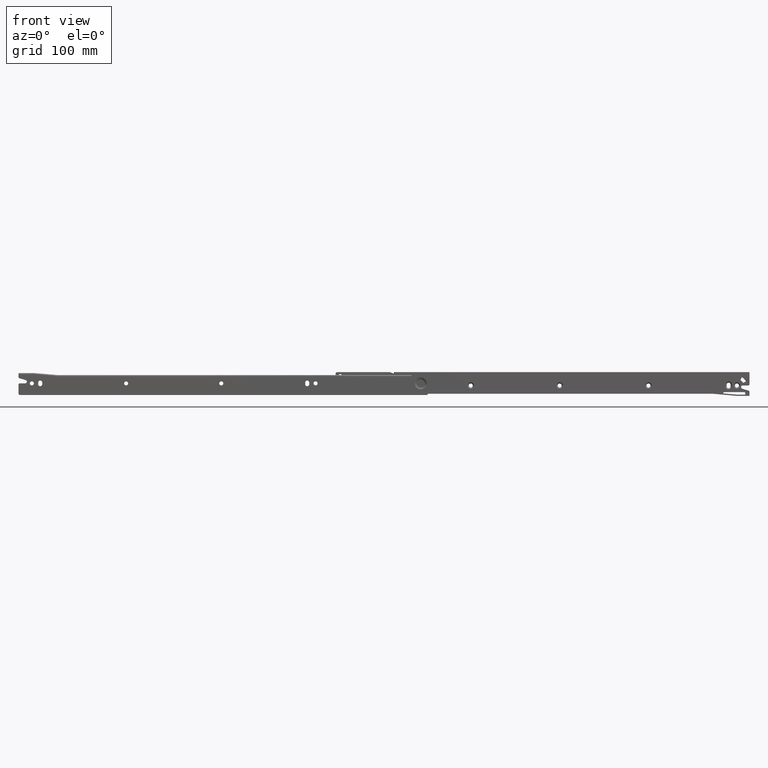
[diagram: clean part render]
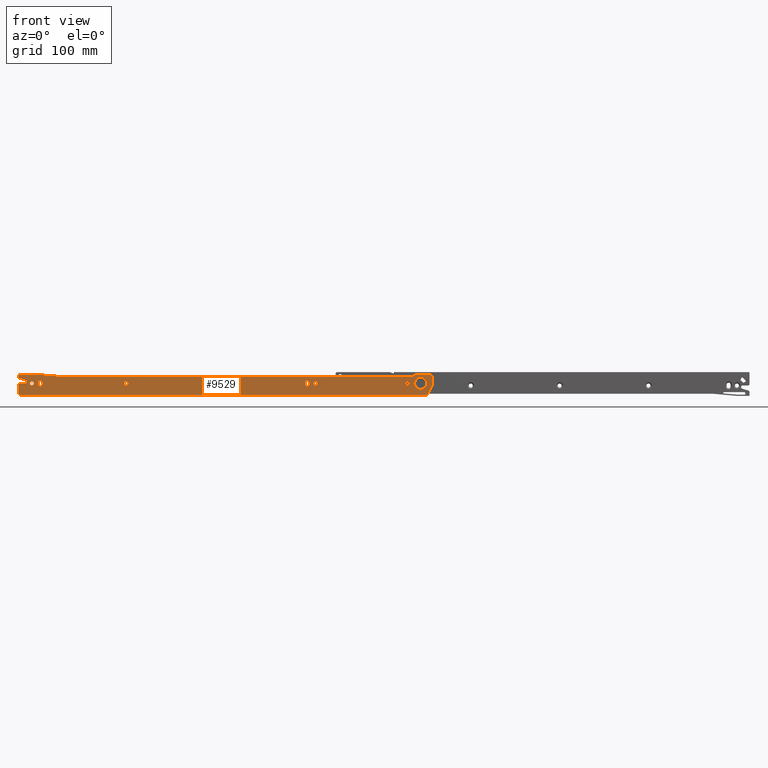
[diagram: same view with one face highlighted and labeled with its STEP entity id]
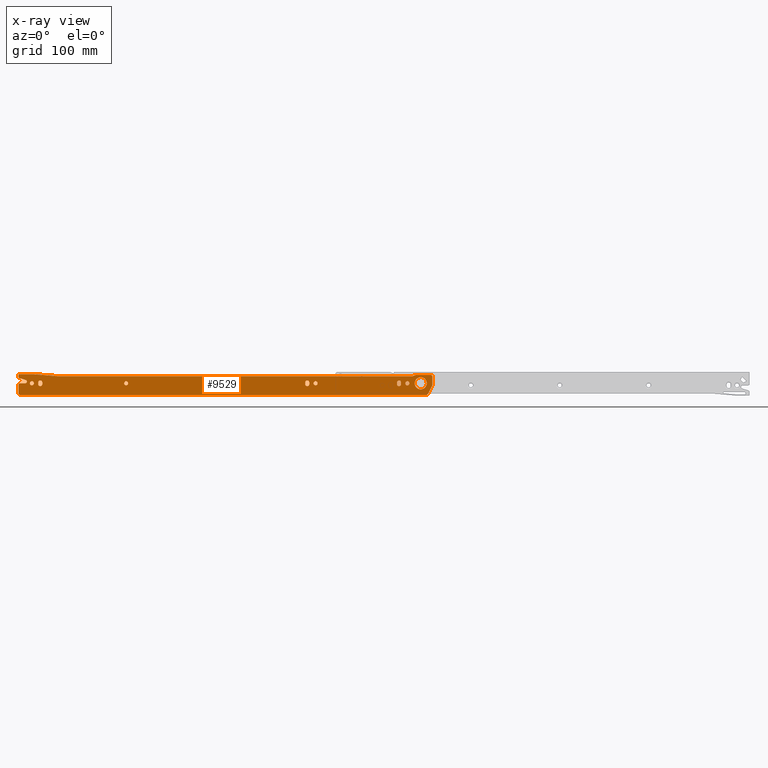
[diagram: x-ray of the same camera — body ghosted, the highlighted face saturated]
A machine part, front view. The second image highlights one B-rep face of the part: STEP entity #9529.
The next image is the same camera in x-ray: the body ghosted, the highlighted face saturated — about 0% of this face is hidden behind the body in this view.
In plain terms, the highlighted face is a freeform B-spline surface patch.
Its self-contained STEP definition (entity closure, byte-faithful):
#5490=CARTESIAN_POINT('',(466.0,0.0,16.399999999999970));
#5491=VERTEX_POINT('',#5490);
#5492=CARTESIAN_POINT('',(463.607398397187980,5.468992E-009,14.188301868942540));
#5493=VERTEX_POINT('',#5492);
#5494=CARTESIAN_POINT('',(466.0,0.0,16.399999999999970));
#5495=CARTESIAN_POINT('',(463.781462892215190,0.0,16.399999999999967));
#5496=CARTESIAN_POINT('',(463.607398397187980,5.468992E-009,14.188301868942542));
#5504=(BOUNDED_CURVE()B_SPLINE_CURVE(2,(#5494,#5495,#5496),.UNSPECIFIED.,.F.,.U.)B_SPLINE_CURVE_WITH_KNOTS((3,3),(0.0,0.236331295071537),.UNSPECIFIED.)CURVE()GEOMETRIC_REPRESENTATION_ITEM()RATIONAL_B_SPLINE_CURVE((1.0,0.723120665120583,0.969723344565953))REPRESENTATION_ITEM(''));
#5505=EDGE_CURVE('',#5491,#5493,#5504,.T.);
#5546=CARTESIAN_POINT('',(468.392601602812020,5.468987E-009,13.811698131057460));
#5547=VERTEX_POINT('',#5546);
#5553=CARTESIAN_POINT('',(468.392601602811960,5.468987E-009,13.811698131057465));
#5554=CARTESIAN_POINT('',(468.400000000000030,0.0,13.905703704191961));
#5555=CARTESIAN_POINT('',(468.399999999999980,0.0,14.0));
#5556=CARTESIAN_POINT('',(468.399999999999980,0.0,16.399999999999970));
#5557=CARTESIAN_POINT('',(466.0,0.0,16.399999999999970));
#5565=(BOUNDED_CURVE()B_SPLINE_CURVE(2,(#5553,#5554,#5555,#5556,#5557),.UNSPECIFIED.,.F.,.U.)B_SPLINE_CURVE_WITH_KNOTS((3,2,3),(0.736331295071537,0.750000000000000,1.0),.UNSPECIFIED.)CURVE()GEOMETRIC_REPRESENTATION_ITEM()RATIONAL_B_SPLINE_CURVE((0.969723344565953,0.983986116065964,1.0,0.707106781186548,1.0))REPRESENTATION_ITEM(''));
#5566=EDGE_CURVE('',#5547,#5491,#5565,.T.);
#5589=CARTESIAN_POINT('',(466.0,0.0,11.600000000000030));
#5590=VERTEX_POINT('',#5589);
#5591=CARTESIAN_POINT('',(463.607398397188040,5.468992E-009,14.188301868942546));
#5592=CARTESIAN_POINT('',(463.600000000000140,0.0,14.094296295808039));
#5593=CARTESIAN_POINT('',(463.600000000000080,0.0,14.0));
#5594=CARTESIAN_POINT('',(463.600000000000250,0.0,11.600000000000025));
#5595=CARTESIAN_POINT('',(466.0,0.0,11.600000000000030));
#5603=(BOUNDED_CURVE()B_SPLINE_CURVE(2,(#5591,#5592,#5593,#5594,#5595),.UNSPECIFIED.,.F.,.U.)B_SPLINE_CURVE_WITH_KNOTS((3,2,3),(0.236331295071537,0.250000000000000,0.500000000000000),.UNSPECIFIED.)CURVE()GEOMETRIC_REPRESENTATION_ITEM()RATIONAL_B_SPLINE_CURVE((0.969723344565953,0.983986116065964,1.0,0.707106781186548,1.0))REPRESENTATION_ITEM(''));
#5604=EDGE_CURVE('',#5493,#5590,#5603,.T.);
#5606=CARTESIAN_POINT('',(466.0,0.0,11.600000000000030));
#5607=CARTESIAN_POINT('',(468.218537107785040,0.0,11.600000000000025));
#5608=CARTESIAN_POINT('',(468.392601602811960,5.468987E-009,13.811698131057460));
#5616=(BOUNDED_CURVE()B_SPLINE_CURVE(2,(#5606,#5607,#5608),.UNSPECIFIED.,.F.,.U.)B_SPLINE_CURVE_WITH_KNOTS((3,3),(0.500000000000000,0.736331295071537),.UNSPECIFIED.)CURVE()GEOMETRIC_REPRESENTATION_ITEM()RATIONAL_B_SPLINE_CURVE((1.0,0.723120665120583,0.969723344565953))REPRESENTATION_ITEM(''));
#5617=EDGE_CURVE('',#5590,#5547,#5616,.T.);
#5672=CARTESIAN_POINT('',(356.0,0.0,16.399999999999970));
#5673=VERTEX_POINT('',#5672);
#5674=CARTESIAN_POINT('',(353.607398397187920,5.469012E-009,14.188301868942551));
#5675=VERTEX_POINT('',#5674);
#5676=CARTESIAN_POINT('',(356.0,0.0,16.399999999999970));
#5677=CARTESIAN_POINT('',(353.781462892215130,0.0,16.399999999999967));
#5678=CARTESIAN_POINT('',(353.607398397187980,5.469012E-009,14.188301868942546));
#5686=(BOUNDED_CURVE()B_SPLINE_CURVE(2,(#5676,#5677,#5678),.UNSPECIFIED.,.F.,.U.)B_SPLINE_CURVE_WITH_KNOTS((3,3),(0.0,0.236331295071536),.UNSPECIFIED.)CURVE()GEOMETRIC_REPRESENTATION_ITEM()RATIONAL_B_SPLINE_CURVE((1.0,0.723120665120584,0.969723344565952))REPRESENTATION_ITEM(''));
#5687=EDGE_CURVE('',#5673,#5675,#5686,.T.);
#5728=CARTESIAN_POINT('',(358.392601602812020,5.468989E-009,13.811698131057460));
#5729=VERTEX_POINT('',#5728);
#5735=CARTESIAN_POINT('',(358.392601602812020,5.468989E-009,13.811698131057465));
#5736=CARTESIAN_POINT('',(358.400000000000030,0.0,13.905703704191961));
#5737=CARTESIAN_POINT('',(358.399999999999920,0.0,14.0));
#5738=CARTESIAN_POINT('',(358.399999999999920,0.0,16.399999999999970));
#5739=CARTESIAN_POINT('',(356.0,0.0,16.399999999999970));
#5747=(BOUNDED_CURVE()B_SPLINE_CURVE(2,(#5735,#5736,#5737,#5738,#5739),.UNSPECIFIED.,.F.,.U.)B_SPLINE_CURVE_WITH_KNOTS((3,2,3),(0.736331295071537,0.750000000000000,1.0),.UNSPECIFIED.)CURVE()GEOMETRIC_REPRESENTATION_ITEM()RATIONAL_B_SPLINE_CURVE((0.969723344565953,0.983986116065964,1.0,0.707106781186548,1.0))REPRESENTATION_ITEM(''));
#5748=EDGE_CURVE('',#5729,#5673,#5747,.T.);
#5771=CARTESIAN_POINT('',(356.0,0.0,11.600000000000030));
#5772=VERTEX_POINT('',#5771);
#5773=CARTESIAN_POINT('',(353.607398397187980,5.469012E-009,14.188301868942546));
#5774=CARTESIAN_POINT('',(353.600000000000080,0.0,14.094296295808045));
#5775=CARTESIAN_POINT('',(353.600000000000020,0.0,14.0));
#5776=CARTESIAN_POINT('',(353.600000000000140,0.0,11.600000000000025));
#5777=CARTESIAN_POINT('',(356.0,0.0,11.600000000000030));
#5785=(BOUNDED_CURVE()B_SPLINE_CURVE(2,(#5773,#5774,#5775,#5776,#5777),.UNSPECIFIED.,.F.,.U.)B_SPLINE_CURVE_WITH_KNOTS((3,2,3),(0.236331295071536,0.250000000000000,0.500000000000000),.UNSPECIFIED.)CURVE()GEOMETRIC_REPRESENTATION_ITEM()RATIONAL_B_SPLINE_CURVE((0.969723344565952,0.983986116065964,1.0,0.707106781186548,1.0))REPRESENTATION_ITEM(''));
#5786=EDGE_CURVE('',#5675,#5772,#5785,.T.);
#5788=CARTESIAN_POINT('',(356.0,0.0,11.600000000000030));
#5789=CARTESIAN_POINT('',(358.218537107784980,0.0,11.600000000000025));
#5790=CARTESIAN_POINT('',(358.392601602811960,5.468989E-009,13.811698131057460));
#5798=(BOUNDED_CURVE()B_SPLINE_CURVE(2,(#5788,#5789,#5790),.UNSPECIFIED.,.F.,.U.)B_SPLINE_CURVE_WITH_KNOTS((3,3),(0.500000000000000,0.736331295071537),.UNSPECIFIED.)CURVE()GEOMETRIC_REPRESENTATION_ITEM()RATIONAL_B_SPLINE_CURVE((1.0,0.723120665120583,0.969723344565953))REPRESENTATION_ITEM(''));
#5799=EDGE_CURVE('',#5772,#5729,#5798,.T.);
#5854=CARTESIAN_POINT('',(243.0,0.0,16.399999999999999));
#5855=VERTEX_POINT('',#5854);
#5856=CARTESIAN_POINT('',(240.607398397188010,5.469005E-009,14.188301868942551));
#5857=VERTEX_POINT('',#5856);
#5858=CARTESIAN_POINT('',(243.0,0.0,16.399999999999999));
#5859=CARTESIAN_POINT('',(240.781462892215070,0.0,16.399999999999999));
#5860=CARTESIAN_POINT('',(240.607398397187920,5.469005E-009,14.188301868942546));
#5868=(BOUNDED_CURVE()B_SPLINE_CURVE(2,(#5858,#5859,#5860),.UNSPECIFIED.,.F.,.U.)B_SPLINE_CURVE_WITH_KNOTS((3,3),(0.0,0.236331295071536),.UNSPECIFIED.)CURVE()GEOMETRIC_REPRESENTATION_ITEM()RATIONAL_B_SPLINE_CURVE((1.0,0.723120665120584,0.969723344565952))REPRESENTATION_ITEM(''));
#5869=EDGE_CURVE('',#5855,#5857,#5868,.T.);
#5910=CARTESIAN_POINT('',(245.392601602812110,5.468991E-009,13.811698131057460));
#5911=VERTEX_POINT('',#5910);
#5917=CARTESIAN_POINT('',(245.392601602812140,5.468991E-009,13.811698131057465));
#5918=CARTESIAN_POINT('',(245.399999999999980,0.0,13.905703704191961));
#5919=CARTESIAN_POINT('',(245.400000000000010,0.0,14.0));
#5920=CARTESIAN_POINT('',(245.400000000000090,0.0,16.400000000000002));
#5921=CARTESIAN_POINT('',(243.0,0.0,16.399999999999999));
#5929=(BOUNDED_CURVE()B_SPLINE_CURVE(2,(#5917,#5918,#5919,#5920,#5921),.UNSPECIFIED.,.F.,.U.)B_SPLINE_CURVE_WITH_KNOTS((3,2,3),(0.736331295071537,0.750000000000000,1.0),.UNSPECIFIED.)CURVE()GEOMETRIC_REPRESENTATION_ITEM()RATIONAL_B_SPLINE_CURVE((0.969723344565953,0.983986116065964,1.0,0.707106781186547,1.0))REPRESENTATION_ITEM(''));
#5930=EDGE_CURVE('',#5911,#5855,#5929,.T.);
#5953=CARTESIAN_POINT('',(243.0,0.0,11.600000000000000));
#5954=VERTEX_POINT('',#5953);
#5955=CARTESIAN_POINT('',(240.607398397187920,5.469005E-009,14.188301868942546));
#5956=CARTESIAN_POINT('',(240.599999999999990,0.0,14.094296295808045));
#5957=CARTESIAN_POINT('',(240.599999999999990,0.0,14.0));
#5958=CARTESIAN_POINT('',(240.599999999999970,0.0,11.600000000000003));
#5959=CARTESIAN_POINT('',(243.0,0.0,11.600000000000000));
#5967=(BOUNDED_CURVE()B_SPLINE_CURVE(2,(#5955,#5956,#5957,#5958,#5959),.UNSPECIFIED.,.F.,.U.)B_SPLINE_CURVE_WITH_KNOTS((3,2,3),(0.236331295071536,0.250000000000000,0.500000000000000),.UNSPECIFIED.)CURVE()GEOMETRIC_REPRESENTATION_ITEM()RATIONAL_B_SPLINE_CURVE((0.969723344565952,0.983986116065964,1.0,0.707106781186547,1.0))REPRESENTATION_ITEM(''));
#5968=EDGE_CURVE('',#5857,#5954,#5967,.T.);
#5970=CARTESIAN_POINT('',(243.0,0.0,11.600000000000000));
#5971=CARTESIAN_POINT('',(245.218537107784930,0.0,11.600000000000001));
#5972=CARTESIAN_POINT('',(245.392601602812080,5.468991E-009,13.811698131057462));
#5980=(BOUNDED_CURVE()B_SPLINE_CURVE(2,(#5970,#5971,#5972),.UNSPECIFIED.,.F.,.U.)B_SPLINE_CURVE_WITH_KNOTS((3,3),(0.500000000000000,0.736331295071537),.UNSPECIFIED.)CURVE()GEOMETRIC_REPRESENTATION_ITEM()RATIONAL_B_SPLINE_CURVE((1.0,0.723120665120583,0.969723344565953))REPRESENTATION_ITEM(''));
#5981=EDGE_CURVE('',#5954,#5911,#5980,.T.);
#6036=CARTESIAN_POINT('',(129.0,0.0,16.399999999999999));
#6037=VERTEX_POINT('',#6036);
#6038=CARTESIAN_POINT('',(126.607398397188010,5.469004E-009,14.188301868942551));
#6039=VERTEX_POINT('',#6038);
#6040=CARTESIAN_POINT('',(129.0,0.0,16.399999999999999));
#6041=CARTESIAN_POINT('',(126.781462892215050,0.0,16.400000000000009));
#6042=CARTESIAN_POINT('',(126.607398397187940,5.469004E-009,14.188301868942546));
#6050=(BOUNDED_CURVE()B_SPLINE_CURVE(2,(#6040,#6041,#6042),.UNSPECIFIED.,.F.,.U.)B_SPLINE_CURVE_WITH_KNOTS((3,3),(0.0,0.236331295071537),.UNSPECIFIED.)CURVE()GEOMETRIC_REPRESENTATION_ITEM()RATIONAL_B_SPLINE_CURVE((1.0,0.723120665120583,0.969723344565953))REPRESENTATION_ITEM(''));
#6051=EDGE_CURVE('',#6037,#6039,#6050,.T.);
#6092=CARTESIAN_POINT('',(131.392601602812110,5.468997E-009,13.811698131057460));
#6093=VERTEX_POINT('',#6092);
#6099=CARTESIAN_POINT('',(131.392601602812050,5.468997E-009,13.811698131057456));
#6100=CARTESIAN_POINT('',(131.399999999999980,0.0,13.905703704191962));
#6101=CARTESIAN_POINT('',(131.400000000000010,0.0,14.0));
#6102=CARTESIAN_POINT('',(131.400000000000010,0.0,16.400000000000002));
#6103=CARTESIAN_POINT('',(129.0,0.0,16.399999999999999));
#6111=(BOUNDED_CURVE()B_SPLINE_CURVE(2,(#6099,#6100,#6101,#6102,#6103),.UNSPECIFIED.,.F.,.U.)B_SPLINE_CURVE_WITH_KNOTS((3,2,3),(0.736331295071537,0.750000000000000,1.0),.UNSPECIFIED.)CURVE()GEOMETRIC_REPRESENTATION_ITEM()RATIONAL_B_SPLINE_CURVE((0.969723344565952,0.983986116065964,1.0,0.707106781186547,1.0))REPRESENTATION_ITEM(''));
#6112=EDGE_CURVE('',#6093,#6037,#6111,.T.);
#6135=CARTESIAN_POINT('',(129.0,0.0,11.600000000000000));
#6136=VERTEX_POINT('',#6135);
#6137=CARTESIAN_POINT('',(126.607398397187960,5.469004E-009,14.188301868942549));
#6138=CARTESIAN_POINT('',(126.600000000000040,0.0,14.094296295808039));
#6139=CARTESIAN_POINT('',(126.599999999999990,0.0,14.0));
#6140=CARTESIAN_POINT('',(126.599999999999990,0.0,11.600000000000003));
#6141=CARTESIAN_POINT('',(129.0,0.0,11.600000000000000));
#6149=(BOUNDED_CURVE()B_SPLINE_CURVE(2,(#6137,#6138,#6139,#6140,#6141),.UNSPECIFIED.,.F.,.U.)B_SPLINE_CURVE_WITH_KNOTS((3,2,3),(0.236331295071537,0.250000000000000,0.500000000000000),.UNSPECIFIED.)CURVE()GEOMETRIC_REPRESENTATION_ITEM()RATIONAL_B_SPLINE_CURVE((0.969723344565952,0.983986116065964,1.0,0.707106781186547,1.0))REPRESENTATION_ITEM(''));
#6150=EDGE_CURVE('',#6039,#6136,#6149,.T.);
#6152=CARTESIAN_POINT('',(129.0,0.0,11.600000000000000));
#6153=CARTESIAN_POINT('',(131.218537107784950,0.0,11.600000000000001));
#6154=CARTESIAN_POINT('',(131.392601602812080,5.468997E-009,13.811698131057462));
#6162=(BOUNDED_CURVE()B_SPLINE_CURVE(2,(#6152,#6153,#6154),.UNSPECIFIED.,.F.,.U.)B_SPLINE_CURVE_WITH_KNOTS((3,3),(0.500000000000000,0.736331295071537),.UNSPECIFIED.)CURVE()GEOMETRIC_REPRESENTATION_ITEM()RATIONAL_B_SPLINE_CURVE((1.0,0.723120665120583,0.969723344565953))REPRESENTATION_ITEM(''));
#6163=EDGE_CURVE('',#6136,#6093,#6162,.T.);
#6620=CARTESIAN_POINT('',(16.0,0.0,16.399999999999999));
#6621=VERTEX_POINT('',#6620);
#6622=CARTESIAN_POINT('',(13.607398397187939,5.469001E-009,14.188301868942551));
#6623=VERTEX_POINT('',#6622);
#6624=CARTESIAN_POINT('',(16.0,0.0,16.399999999999999));
#6625=CARTESIAN_POINT('',(13.781462892215046,0.0,16.400000000000009));
#6626=CARTESIAN_POINT('',(13.607398397187950,5.469001E-009,14.188301868942546));
#6634=(BOUNDED_CURVE()B_SPLINE_CURVE(2,(#6624,#6625,#6626),.UNSPECIFIED.,.F.,.U.)B_SPLINE_CURVE_WITH_KNOTS((3,3),(0.0,0.236331295071537),.UNSPECIFIED.)CURVE()GEOMETRIC_REPRESENTATION_ITEM()RATIONAL_B_SPLINE_CURVE((1.0,0.723120665120583,0.969723344565953))REPRESENTATION_ITEM(''));
#6635=EDGE_CURVE('',#6621,#6623,#6634,.T.);
#6676=CARTESIAN_POINT('',(18.392601602812061,5.469000E-009,13.811698131057460));
#6677=VERTEX_POINT('',#6676);
#6683=CARTESIAN_POINT('',(18.392601602812054,5.469000E-009,13.811698131057456));
#6684=CARTESIAN_POINT('',(18.399999999999999,0.0,13.905703704191962));
#6685=CARTESIAN_POINT('',(18.399999999999999,0.0,14.0));
#6686=CARTESIAN_POINT('',(18.399999999999995,0.0,16.400000000000002));
#6687=CARTESIAN_POINT('',(16.0,0.0,16.399999999999999));
#6695=(BOUNDED_CURVE()B_SPLINE_CURVE(2,(#6683,#6684,#6685,#6686,#6687),.UNSPECIFIED.,.F.,.U.)B_SPLINE_CURVE_WITH_KNOTS((3,2,3),(0.736331295071537,0.750000000000000,1.0),.UNSPECIFIED.)CURVE()GEOMETRIC_REPRESENTATION_ITEM()RATIONAL_B_SPLINE_CURVE((0.969723344565952,0.983986116065964,1.0,0.707106781186547,1.0))REPRESENTATION_ITEM(''));
#6696=EDGE_CURVE('',#6677,#6621,#6695,.T.);
#6719=CARTESIAN_POINT('',(16.0,0.0,11.600000000000000));
#6720=VERTEX_POINT('',#6719);
#6721=CARTESIAN_POINT('',(13.607398397187950,5.469001E-009,14.188301868942546));
#6722=CARTESIAN_POINT('',(13.600000000000005,0.0,14.094296295808039));
#6723=CARTESIAN_POINT('',(13.600000000000000,0.0,14.0));
#6724=CARTESIAN_POINT('',(13.600000000000001,0.0,11.600000000000003));
#6725=CARTESIAN_POINT('',(16.0,0.0,11.600000000000000));
#6733=(BOUNDED_CURVE()B_SPLINE_CURVE(2,(#6721,#6722,#6723,#6724,#6725),.UNSPECIFIED.,.F.,.U.)B_SPLINE_CURVE_WITH_KNOTS((3,2,3),(0.236331295071537,0.250000000000000,0.500000000000000),.UNSPECIFIED.)CURVE()GEOMETRIC_REPRESENTATION_ITEM()RATIONAL_B_SPLINE_CURVE((0.969723344565953,0.983986116065964,1.0,0.707106781186547,1.0))REPRESENTATION_ITEM(''));
#6734=EDGE_CURVE('',#6623,#6720,#6733,.T.);
#6736=CARTESIAN_POINT('',(16.0,0.0,11.600000000000000));
#6737=CARTESIAN_POINT('',(18.218537107784954,0.0,11.600000000000001));
#6738=CARTESIAN_POINT('',(18.392601602812057,5.469000E-009,13.811698131057462));
#6746=(BOUNDED_CURVE()B_SPLINE_CURVE(2,(#6736,#6737,#6738),.UNSPECIFIED.,.F.,.U.)B_SPLINE_CURVE_WITH_KNOTS((3,3),(0.500000000000000,0.736331295071537),.UNSPECIFIED.)CURVE()GEOMETRIC_REPRESENTATION_ITEM()RATIONAL_B_SPLINE_CURVE((1.0,0.723120665120583,0.969723344565953))REPRESENTATION_ITEM(''));
#6747=EDGE_CURVE('',#6720,#6677,#6746,.T.);
#6855=CARTESIAN_POINT('',(476.602319200691110,1.206755E-015,18.819307116848780));
#6856=VERTEX_POINT('',#6855);
#6870=CARTESIAN_POINT('',(482.0,0.0,6.763932022500210));
#6871=VERTEX_POINT('',#6870);
#6872=CARTESIAN_POINT('',(482.0,0.0,6.763932022500210));
#6873=CARTESIAN_POINT('',(474.763932022500170,0.0,6.763932022500212));
#6874=CARTESIAN_POINT('',(474.763932022500230,0.0,14.0));
#6875=CARTESIAN_POINT('',(474.763932022500230,0.0,16.760291870702062));
#6876=CARTESIAN_POINT('',(476.602319200691110,1.206755E-015,18.819307116848787));
#6884=(BOUNDED_CURVE()B_SPLINE_CURVE(2,(#6872,#6873,#6874,#6875,#6876),.UNSPECIFIED.,.F.,.U.)B_SPLINE_CURVE_WITH_KNOTS((3,2,3),(0.500000000000000,0.750000000000000,0.866465190568448),.UNSPECIFIED.)CURVE()GEOMETRIC_REPRESENTATION_ITEM()RATIONAL_B_SPLINE_CURVE((1.0,0.707106781186548,1.0,0.863552541818741,0.854236117394767))REPRESENTATION_ITEM(''));
#6885=EDGE_CURVE('',#6871,#6856,#6884,.T.);
#6887=CARTESIAN_POINT('',(486.163834798710920,1.198070E-015,19.918036738701321));
#6888=VERTEX_POINT('',#6887);
#6889=CARTESIAN_POINT('',(486.163834798710980,1.198070E-015,19.918036738701314));
#6890=CARTESIAN_POINT('',(489.236067977499830,0.0,17.756463288696164));
#6891=CARTESIAN_POINT('',(489.236067977499770,0.0,14.0));
#6892=CARTESIAN_POINT('',(489.236067977499890,0.0,6.763932022500212));
#6893=CARTESIAN_POINT('',(482.0,0.0,6.763932022500210));
#6901=(BOUNDED_CURVE()B_SPLINE_CURVE(2,(#6889,#6890,#6891,#6892,#6893),.UNSPECIFIED.,.F.,.U.)B_SPLINE_CURVE_WITH_KNOTS((3,2,3),(0.098941835654268,0.250000000000000,0.500000000000000),.UNSPECIFIED.)CURVE()GEOMETRIC_REPRESENTATION_ITEM()RATIONAL_B_SPLINE_CURVE((0.859917636219172,0.823024352066908,1.0,0.707106781186548,1.0))REPRESENTATION_ITEM(''));
#6902=EDGE_CURVE('',#6888,#6871,#6901,.T.);
#6953=CARTESIAN_POINT('',(482.0,0.0,21.236067977499790));
#6954=VERTEX_POINT('',#6953);
#6955=CARTESIAN_POINT('',(482.0,0.0,21.236067977499790));
#6956=CARTESIAN_POINT('',(484.290523943328650,0.0,21.236067977499797));
#6957=CARTESIAN_POINT('',(486.163834798710920,1.198070E-015,19.918036738701314));
#6965=(BOUNDED_CURVE()B_SPLINE_CURVE(2,(#6955,#6956,#6957),.UNSPECIFIED.,.F.,.U.)B_SPLINE_CURVE_WITH_KNOTS((3,3),(0.0,0.098941835654268),.UNSPECIFIED.)CURVE()GEOMETRIC_REPRESENTATION_ITEM()RATIONAL_B_SPLINE_CURVE((1.0,0.884082429119640,0.859917636219172))REPRESENTATION_ITEM(''));
#6966=EDGE_CURVE('',#6954,#6888,#6965,.T.);
#6968=CARTESIAN_POINT('',(476.602319200691060,1.206755E-015,18.819307116848787));
#6969=CARTESIAN_POINT('',(478.760118617910390,0.0,21.236067977499790));
#6970=CARTESIAN_POINT('',(482.0,0.0,21.236067977499790));
#6978=(BOUNDED_CURVE()B_SPLINE_CURVE(2,(#6968,#6969,#6970),.UNSPECIFIED.,.F.,.U.)B_SPLINE_CURVE_WITH_KNOTS((3,3),(0.866465190568448,1.0),.UNSPECIFIED.)CURVE()GEOMETRIC_REPRESENTATION_ITEM()RATIONAL_B_SPLINE_CURVE((0.854236117394767,0.843554239367807,1.0))REPRESENTATION_ITEM(''));
#6979=EDGE_CURVE('',#6856,#6954,#6978,.T.);
#7155=CARTESIAN_POINT('',(453.600000000000020,0.0,15.0));
#7156=VERTEX_POINT('',#7155);
#7162=CARTESIAN_POINT('',(453.600000000000020,0.0,12.999999999999799));
#7163=VERTEX_POINT('',#7162);
#7164=CARTESIAN_POINT('',(453.600000000000020,0.0,12.999999999999799));
#7165=CARTESIAN_POINT('',(453.600000000000020,0.0,15.0));
#7166=QUASI_UNIFORM_CURVE('',1,(#7164,#7165),.UNSPECIFIED.,.F.,.U.);
#7167=EDGE_CURVE('',#7163,#7156,#7166,.T.);
#7202=CARTESIAN_POINT('',(458.399999999999980,0.0,12.999999999999799));
#7203=VERTEX_POINT('',#7202);
#7227=CARTESIAN_POINT('',(453.600000000000080,0.0,12.999999999999799));
#7228=CARTESIAN_POINT('',(453.600000000000020,0.0,10.599999999999826));
#7229=CARTESIAN_POINT('',(456.0,0.0,10.599999999999829));
#7230=CARTESIAN_POINT('',(458.399999999999810,0.0,10.599999999999826));
#7231=CARTESIAN_POINT('',(458.399999999999980,0.0,12.999999999999799));
#7239=(BOUNDED_CURVE()B_SPLINE_CURVE(2,(#7227,#7228,#7229,#7230,#7231),.UNSPECIFIED.,.F.,.U.)B_SPLINE_CURVE_WITH_KNOTS((3,2,3),(0.0,0.500000000000000,1.0),.UNSPECIFIED.)CURVE()GEOMETRIC_REPRESENTATION_ITEM()RATIONAL_B_SPLINE_CURVE((1.0,0.707106781186548,1.0,0.707106781186548,1.0))REPRESENTATION_ITEM(''));
#7240=EDGE_CURVE('',#7163,#7203,#7239,.T.);
#7265=CARTESIAN_POINT('',(458.399999999999980,0.0,15.0));
#7266=VERTEX_POINT('',#7265);
#7272=CARTESIAN_POINT('',(458.399999999999980,0.0,15.0));
#7273=CARTESIAN_POINT('',(458.399999999999810,0.0,17.399999999999974));
#7274=CARTESIAN_POINT('',(456.0,0.0,17.399999999999970));
#7275=CARTESIAN_POINT('',(453.600000000000020,0.0,17.399999999999974));
#7276=CARTESIAN_POINT('',(453.600000000000080,0.0,15.0));
#7284=(BOUNDED_CURVE()B_SPLINE_CURVE(2,(#7272,#7273,#7274,#7275,#7276),.UNSPECIFIED.,.F.,.U.)B_SPLINE_CURVE_WITH_KNOTS((3,2,3),(0.0,0.500000000000000,1.0),.UNSPECIFIED.)CURVE()GEOMETRIC_REPRESENTATION_ITEM()RATIONAL_B_SPLINE_CURVE((1.0,0.707106781186548,1.0,0.707106781186548,1.0))REPRESENTATION_ITEM(''));
#7285=EDGE_CURVE('',#7266,#7156,#7284,.T.);
#7312=CARTESIAN_POINT('',(458.399999999999980,0.0,15.0));
#7313=CARTESIAN_POINT('',(458.399999999999980,0.0,12.999999999999799));
#7314=QUASI_UNIFORM_CURVE('',1,(#7312,#7313),.UNSPECIFIED.,.F.,.U.);
#7315=EDGE_CURVE('',#7266,#7203,#7314,.T.);
#7333=CARTESIAN_POINT('',(343.600000000000020,0.0,15.0));
#7334=VERTEX_POINT('',#7333);
#7340=CARTESIAN_POINT('',(343.600000000000020,0.0,12.999999999999799));
#7341=VERTEX_POINT('',#7340);
#7342=CARTESIAN_POINT('',(343.600000000000020,0.0,12.999999999999799));
#7343=CARTESIAN_POINT('',(343.600000000000020,0.0,15.0));
#7344=QUASI_UNIFORM_CURVE('',1,(#7342,#7343),.UNSPECIFIED.,.F.,.U.);
#7345=EDGE_CURVE('',#7341,#7334,#7344,.T.);
#7380=CARTESIAN_POINT('',(348.399999999999980,0.0,12.999999999999799));
#7381=VERTEX_POINT('',#7380);
#7405=CARTESIAN_POINT('',(343.600000000000020,0.0,12.999999999999799));
#7406=CARTESIAN_POINT('',(343.600000000000080,0.0,10.599999999999826));
#7407=CARTESIAN_POINT('',(346.0,0.0,10.599999999999829));
#7408=CARTESIAN_POINT('',(348.399999999999920,0.0,10.599999999999826));
#7409=CARTESIAN_POINT('',(348.399999999999920,0.0,12.999999999999799));
#7417=(BOUNDED_CURVE()B_SPLINE_CURVE(2,(#7405,#7406,#7407,#7408,#7409),.UNSPECIFIED.,.F.,.U.)B_SPLINE_CURVE_WITH_KNOTS((3,2,3),(0.0,0.500000000000000,1.0),.UNSPECIFIED.)CURVE()GEOMETRIC_REPRESENTATION_ITEM()RATIONAL_B_SPLINE_CURVE((1.0,0.707106781186548,1.0,0.707106781186548,1.0))REPRESENTATION_ITEM(''));
#7418=EDGE_CURVE('',#7341,#7381,#7417,.T.);
#7443=CARTESIAN_POINT('',(348.399999999999980,0.0,15.0));
#7444=VERTEX_POINT('',#7443);
#7450=CARTESIAN_POINT('',(348.399999999999920,0.0,15.0));
#7451=CARTESIAN_POINT('',(348.399999999999920,0.0,17.399999999999974));
#7452=CARTESIAN_POINT('',(346.0,0.0,17.399999999999970));
#7453=CARTESIAN_POINT('',(343.600000000000080,0.0,17.399999999999974));
#7454=CARTESIAN_POINT('',(343.600000000000020,0.0,15.0));
#7462=(BOUNDED_CURVE()B_SPLINE_CURVE(2,(#7450,#7451,#7452,#7453,#7454),.UNSPECIFIED.,.F.,.U.)B_SPLINE_CURVE_WITH_KNOTS((3,2,3),(0.0,0.500000000000000,1.0),.UNSPECIFIED.)CURVE()GEOMETRIC_REPRESENTATION_ITEM()RATIONAL_B_SPLINE_CURVE((1.0,0.707106781186548,1.0,0.707106781186548,1.0))REPRESENTATION_ITEM(''));
#7463=EDGE_CURVE('',#7444,#7334,#7462,.T.);
#7490=CARTESIAN_POINT('',(348.399999999999980,0.0,15.0));
#7491=CARTESIAN_POINT('',(348.399999999999980,0.0,12.999999999999799));
#7492=QUASI_UNIFORM_CURVE('',1,(#7490,#7491),.UNSPECIFIED.,.F.,.U.);
#7493=EDGE_CURVE('',#7444,#7381,#7492,.T.);
#8054=CARTESIAN_POINT('',(496.0,0.0,22.0));
#8055=VERTEX_POINT('',#8054);
#8056=CARTESIAN_POINT('',(494.0,0.0,24.0));
#8057=VERTEX_POINT('',#8056);
#8058=CARTESIAN_POINT('',(496.0,0.0,22.0));
#8059=CARTESIAN_POINT('',(496.000000000000060,0.0,23.999999999999996));
#8060=CARTESIAN_POINT('',(494.0,0.0,24.0));
#8068=(BOUNDED_CURVE()B_SPLINE_CURVE(2,(#8058,#8059,#8060),.UNSPECIFIED.,.F.,.U.)CURVE()GEOMETRIC_REPRESENTATION_ITEM()QUASI_UNIFORM_CURVE()RATIONAL_B_SPLINE_CURVE((1.0,0.707106781186548,1.0))REPRESENTATION_ITEM(''));
#8069=EDGE_CURVE('',#8055,#8057,#8068,.T.);
#8106=CARTESIAN_POINT('',(496.0,0.0,11.999999999999799));
#8107=VERTEX_POINT('',#8106);
#8108=CARTESIAN_POINT('',(496.0,0.0,11.999999999999799));
#8109=CARTESIAN_POINT('',(496.0,0.0,22.0));
#8110=QUASI_UNIFORM_CURVE('',1,(#8108,#8109),.UNSPECIFIED.,.F.,.U.);
#8111=EDGE_CURVE('',#8107,#8055,#8110,.T.);
#8134=CARTESIAN_POINT('',(490.552786384763980,0.0,1.105572814528704));
#8135=VERTEX_POINT('',#8134);
#8136=CARTESIAN_POINT('',(490.552786384763980,0.0,1.105572814528704));
#8137=CARTESIAN_POINT('',(496.0,0.0,11.999999999999799));
#8138=QUASI_UNIFORM_CURVE('',1,(#8136,#8137),.UNSPECIFIED.,.F.,.U.);
#8139=EDGE_CURVE('',#8135,#8107,#8138,.T.);
#8171=CARTESIAN_POINT('',(488.763932000000010,0.0,0.0));
#8172=VERTEX_POINT('',#8171);
#8173=CARTESIAN_POINT('',(488.763932000000010,0.0,0.0));
#8174=CARTESIAN_POINT('',(489.999999981770940,0.0,0.0));
#8175=CARTESIAN_POINT('',(490.552786384764200,0.0,1.105572814528649));
#8183=(BOUNDED_CURVE()B_SPLINE_CURVE(2,(#8173,#8174,#8175),.UNSPECIFIED.,.F.,.U.)CURVE()GEOMETRIC_REPRESENTATION_ITEM()QUASI_UNIFORM_CURVE()RATIONAL_B_SPLINE_CURVE((1.0,0.850650807539638,1.0))REPRESENTATION_ITEM(''));
#8184=EDGE_CURVE('',#8172,#8135,#8183,.T.);
#8215=CARTESIAN_POINT('',(472.0,0.0,22.500000000000000));
#8216=VERTEX_POINT('',#8215);
#8217=CARTESIAN_POINT('',(471.0,0.0,22.500000000000000));
#8218=VERTEX_POINT('',#8217);
#8219=CARTESIAN_POINT('',(472.0,0.0,22.500000000000000));
#8220=CARTESIAN_POINT('',(471.0,0.0,22.500000000000000));
#8221=QUASI_UNIFORM_CURVE('',1,(#8219,#8220),.UNSPECIFIED.,.F.,.U.);
#8222=EDGE_CURVE('',#8216,#8218,#8221,.T.);
#8251=CARTESIAN_POINT('',(476.0,0.0,24.0));
#8252=VERTEX_POINT('',#8251);
#8253=CARTESIAN_POINT('',(476.0,0.0,24.0));
#8254=CARTESIAN_POINT('',(472.0,0.0,22.500000000000000));
#8255=QUASI_UNIFORM_CURVE('',1,(#8253,#8254),.UNSPECIFIED.,.F.,.U.);
#8256=EDGE_CURVE('',#8252,#8216,#8255,.T.);
#8279=CARTESIAN_POINT('',(494.0,0.0,24.0));
#8280=CARTESIAN_POINT('',(476.0,0.0,24.0));
#8281=QUASI_UNIFORM_CURVE('',1,(#8279,#8280),.UNSPECIFIED.,.F.,.U.);
#8282=EDGE_CURVE('',#8057,#8252,#8281,.T.);
#8301=CARTESIAN_POINT('',(23.600000000000001,0.0,15.0));
#8302=VERTEX_POINT('',#8301);
#8308=CARTESIAN_POINT('',(23.600000000000001,0.0,12.999999999999799));
#8309=VERTEX_POINT('',#8308);
#8310=CARTESIAN_POINT('',(23.600000000000001,0.0,15.0));
#8311=CARTESIAN_POINT('',(23.600000000000001,0.0,12.999999999999799));
#8312=QUASI_UNIFORM_CURVE('',1,(#8310,#8311),.UNSPECIFIED.,.F.,.U.);
#8313=EDGE_CURVE('',#8302,#8309,#8312,.T.);
#8348=CARTESIAN_POINT('',(28.399999999999999,0.0,12.999999999999799));
#8349=VERTEX_POINT('',#8348);
#8373=CARTESIAN_POINT('',(23.600000000000001,0.0,12.999999999999799));
#8374=CARTESIAN_POINT('',(23.600000000000001,0.0,10.599999999999801));
#8375=CARTESIAN_POINT('',(26.0,0.0,10.599999999999801));
#8376=CARTESIAN_POINT('',(28.400000000000002,0.0,10.599999999999801));
#8377=CARTESIAN_POINT('',(28.399999999999999,0.0,12.999999999999799));
#8385=(BOUNDED_CURVE()B_SPLINE_CURVE(2,(#8373,#8374,#8375,#8376,#8377),.UNSPECIFIED.,.F.,.U.)B_SPLINE_CURVE_WITH_KNOTS((3,2,3),(0.0,0.500000000000000,1.0),.UNSPECIFIED.)CURVE()GEOMETRIC_REPRESENTATION_ITEM()RATIONAL_B_SPLINE_CURVE((1.0,0.707106781186547,1.0,0.707106781186547,1.0))REPRESENTATION_ITEM(''));
#8386=EDGE_CURVE('',#8309,#8349,#8385,.T.);
#8411=CARTESIAN_POINT('',(28.399999999999999,0.0,15.0));
#8412=VERTEX_POINT('',#8411);
#8418=CARTESIAN_POINT('',(28.399999999999999,0.0,15.0));
#8419=CARTESIAN_POINT('',(28.400000000000002,0.0,17.399999999999991));
#8420=CARTESIAN_POINT('',(26.0,0.0,17.399999999999999));
#8421=CARTESIAN_POINT('',(23.600000000000001,0.0,17.399999999999991));
#8422=CARTESIAN_POINT('',(23.600000000000001,0.0,15.0));
#8430=(BOUNDED_CURVE()B_SPLINE_CURVE(2,(#8418,#8419,#8420,#8421,#8422),.UNSPECIFIED.,.F.,.U.)B_SPLINE_CURVE_WITH_KNOTS((3,2,3),(0.0,0.500000000000000,1.0),.UNSPECIFIED.)CURVE()GEOMETRIC_REPRESENTATION_ITEM()RATIONAL_B_SPLINE_CURVE((1.0,0.707106781186547,1.0,0.707106781186547,1.0))REPRESENTATION_ITEM(''));
#8431=EDGE_CURVE('',#8412,#8302,#8430,.T.);
#8458=CARTESIAN_POINT('',(28.399999999999999,0.0,12.999999999999799));
#8459=CARTESIAN_POINT('',(28.399999999999999,0.0,15.0));
#8460=QUASI_UNIFORM_CURVE('',1,(#8458,#8459),.UNSPECIFIED.,.F.,.U.);
#8461=EDGE_CURVE('',#8349,#8412,#8460,.T.);
#8722=CARTESIAN_POINT('',(46.935464506606500,0.0,22.500000000000000));
#8723=VERTEX_POINT('',#8722);
#8737=CARTESIAN_POINT('',(471.0,0.0,22.500000000000000));
#8738=CARTESIAN_POINT('',(46.935464506606500,0.0,22.500000000000000));
#8739=QUASI_UNIFORM_CURVE('',1,(#8737,#8738),.UNSPECIFIED.,.F.,.U.);
#8740=EDGE_CURVE('',#8218,#8723,#8739,.T.);
#8761=CARTESIAN_POINT('',(17.935464506606550,0.0,25.0));
#8762=VERTEX_POINT('',#8761);
#8778=CARTESIAN_POINT('',(46.935464506606500,0.0,22.500000000000000));
#8779=CARTESIAN_POINT('',(17.935464506606550,0.0,25.0));
#8780=QUASI_UNIFORM_CURVE('',1,(#8778,#8779),.UNSPECIFIED.,.F.,.U.);
#8781=EDGE_CURVE('',#8723,#8762,#8780,.T.);
#8811=CARTESIAN_POINT('',(0.0,0.0,25.0));
#8812=VERTEX_POINT('',#8811);
#8828=CARTESIAN_POINT('',(17.935464506606550,0.0,25.0));
#8829=CARTESIAN_POINT('',(0.0,0.0,25.0));
#8830=QUASI_UNIFORM_CURVE('',1,(#8828,#8829),.UNSPECIFIED.,.F.,.U.);
#8831=EDGE_CURVE('',#8762,#8812,#8830,.T.);
#8919=CARTESIAN_POINT('',(-9.947598E-014,0.0,12.500000000000000));
#8920=VERTEX_POINT('',#8919);
#8921=CARTESIAN_POINT('',(0.0,0.0,2.0));
#8922=VERTEX_POINT('',#8921);
#8923=CARTESIAN_POINT('',(-9.947598E-014,0.0,12.500000000000000));
#8924=CARTESIAN_POINT('',(0.0,0.0,2.0));
#8925=QUASI_UNIFORM_CURVE('',1,(#8923,#8924),.UNSPECIFIED.,.F.,.U.);
#8926=EDGE_CURVE('',#8920,#8922,#8925,.T.);
#8964=CARTESIAN_POINT('',(1.499999999999900,0.0,14.0));
#8965=VERTEX_POINT('',#8964);
#8966=CARTESIAN_POINT('',(1.499999999999900,0.0,14.0));
#8967=CARTESIAN_POINT('',(-9.996344E-014,0.0,13.999999999999998));
#8968=CARTESIAN_POINT('',(-9.996344E-014,0.0,12.500000000000000));
#8976=(BOUNDED_CURVE()B_SPLINE_CURVE(2,(#8966,#8967,#8968),.UNSPECIFIED.,.F.,.U.)CURVE()GEOMETRIC_REPRESENTATION_ITEM()QUASI_UNIFORM_CURVE()RATIONAL_B_SPLINE_CURVE((1.0,0.707106781186548,1.0))REPRESENTATION_ITEM(''));
#8977=EDGE_CURVE('',#8965,#8920,#8976,.T.);
#9008=CARTESIAN_POINT('',(8.0,0.0,14.0));
#9009=VERTEX_POINT('',#9008);
#9010=CARTESIAN_POINT('',(8.0,0.0,14.0));
#9011=CARTESIAN_POINT('',(1.499999999999900,0.0,14.0));
#9012=QUASI_UNIFORM_CURVE('',1,(#9010,#9011),.UNSPECIFIED.,.F.,.U.);
#9013=EDGE_CURVE('',#9009,#8965,#9012,.T.);
#9049=CARTESIAN_POINT('',(8.577140990482000,0.0,17.914917302941699));
#9050=VERTEX_POINT('',#9049);
#9051=CARTESIAN_POINT('',(8.0,0.0,14.0));
#9052=CARTESIAN_POINT('',(9.726774151399797,0.0,14.000000000000005));
#9053=CARTESIAN_POINT('',(9.978614996137875,0.0,15.708310615451451));
#9054=CARTESIAN_POINT('',(10.230455840875955,0.0,17.416621230902891));
#9055=CARTESIAN_POINT('',(8.577140990481997,0.0,17.914917302941689));
#9063=(BOUNDED_CURVE()B_SPLINE_CURVE(2,(#9051,#9052,#9053,#9054,#9055),.UNSPECIFIED.,.F.,.U.)B_SPLINE_CURVE_WITH_KNOTS((3,2,3),(0.0,0.500000000000000,1.0),.UNSPECIFIED.)CURVE()GEOMETRIC_REPRESENTATION_ITEM()RATIONAL_B_SPLINE_CURVE((1.0,0.756916340249792,1.0,0.756916340249792,1.0))REPRESENTATION_ITEM(''));
#9064=EDGE_CURVE('',#9009,#9050,#9063,.T.);
#9097=CARTESIAN_POINT('',(1.067144257138398,0.0,20.178371022793751));
#9098=VERTEX_POINT('',#9097);
#9099=CARTESIAN_POINT('',(1.067144257138398,0.0,20.178371022793751));
#9100=CARTESIAN_POINT('',(8.577140990482000,0.0,17.914917302941699));
#9101=QUASI_UNIFORM_CURVE('',1,(#9099,#9100),.UNSPECIFIED.,.F.,.U.);
#9102=EDGE_CURVE('',#9098,#9050,#9101,.T.);
#9134=CARTESIAN_POINT('',(0.0,0.0,21.614559000000000));
#9135=VERTEX_POINT('',#9134);
#9136=CARTESIAN_POINT('',(0.0,0.0,21.614559000000000));
#9137=CARTESIAN_POINT('',(-9.996344E-014,0.0,20.499999895542427));
#9138=CARTESIAN_POINT('',(1.067144257138394,0.0,20.178371022793741));
#9146=(BOUNDED_CURVE()B_SPLINE_CURVE(2,(#9136,#9137,#9138),.UNSPECIFIED.,.F.,.U.)CURVE()GEOMETRIC_REPRESENTATION_ITEM()QUASI_UNIFORM_CURVE()RATIONAL_B_SPLINE_CURVE((1.0,0.802673811470452,1.0))REPRESENTATION_ITEM(''));
#9147=EDGE_CURVE('',#9135,#9098,#9146,.T.);
#9191=CARTESIAN_POINT('',(0.0,0.0,25.0));
#9192=CARTESIAN_POINT('',(0.0,0.0,21.614559000000000));
#9193=QUASI_UNIFORM_CURVE('',1,(#9191,#9192),.UNSPECIFIED.,.F.,.U.);
#9194=EDGE_CURVE('',#8812,#9135,#9193,.T.);
#9256=CARTESIAN_POINT('',(2.0,0.0,0.0));
#9257=VERTEX_POINT('',#9256);
#9258=CARTESIAN_POINT('',(2.0,0.0,0.0));
#9259=CARTESIAN_POINT('',(488.763932000000010,0.0,0.0));
#9260=QUASI_UNIFORM_CURVE('',1,(#9258,#9259),.UNSPECIFIED.,.F.,.U.);
#9261=EDGE_CURVE('',#9257,#8172,#9260,.T.);
#9293=CARTESIAN_POINT('',(0.0,0.0,2.0));
#9294=CARTESIAN_POINT('',(0.0,0.0,0.0));
#9295=CARTESIAN_POINT('',(2.0,0.0,0.0));
#9303=(BOUNDED_CURVE()B_SPLINE_CURVE(2,(#9293,#9294,#9295),.UNSPECIFIED.,.F.,.U.)CURVE()GEOMETRIC_REPRESENTATION_ITEM()QUASI_UNIFORM_CURVE()RATIONAL_B_SPLINE_CURVE((1.0,0.707106781186548,1.0))REPRESENTATION_ITEM(''));
#9304=EDGE_CURVE('',#8922,#9257,#9303,.T.);
#9449=CARTESIAN_POINT('',(-24.775199038655838,0.0,26.248749951545150));
#9450=CARTESIAN_POINT('',(520.775212342412600,0.0,26.248749951545150));
#9451=CARTESIAN_POINT('',(-24.775199038655838,0.0,-1.248750622097405));
#9452=CARTESIAN_POINT('',(520.775212342412600,0.0,-1.248750622097405));
#9453=B_SPLINE_SURFACE_WITH_KNOTS('',1,1,((#9449,#9451),(#9450,#9452)),.UNSPECIFIED.,.F.,.F.,.U.,(2,2),(2,2),(0.0,545.550411381068440),(0.0,27.497500573642551),.UNSPECIFIED.);
#9454=ORIENTED_EDGE('',*,*,#9261,.T.);
#9455=ORIENTED_EDGE('',*,*,#8184,.T.);
#9456=ORIENTED_EDGE('',*,*,#8139,.T.);
#9457=ORIENTED_EDGE('',*,*,#8111,.T.);
#9458=ORIENTED_EDGE('',*,*,#8069,.T.);
#9459=ORIENTED_EDGE('',*,*,#8282,.T.);
#9460=ORIENTED_EDGE('',*,*,#8256,.T.);
#9461=ORIENTED_EDGE('',*,*,#8222,.T.);
#9462=ORIENTED_EDGE('',*,*,#8740,.T.);
#9463=ORIENTED_EDGE('',*,*,#8781,.T.);
#9464=ORIENTED_EDGE('',*,*,#8831,.T.);
#9465=ORIENTED_EDGE('',*,*,#9194,.T.);
#9466=ORIENTED_EDGE('',*,*,#9147,.T.);
#9467=ORIENTED_EDGE('',*,*,#9102,.T.);
#9468=ORIENTED_EDGE('',*,*,#9064,.F.);
#9469=ORIENTED_EDGE('',*,*,#9013,.T.);
#9470=ORIENTED_EDGE('',*,*,#8977,.T.);
#9471=ORIENTED_EDGE('',*,*,#8926,.T.);
#9472=ORIENTED_EDGE('',*,*,#9304,.T.);
#9473=EDGE_LOOP('',(#9454,#9455,#9456,#9457,#9458,#9459,#9460,#9461,#9462,#9463,#9464,#9465,#9466,#9467,#9468,#9469,#9470,#9471,#9472));
#9474=FACE_OUTER_BOUND('',#9473,.T.);
#9475=ORIENTED_EDGE('',*,*,#7167,.T.);
#9476=ORIENTED_EDGE('',*,*,#7285,.F.);
#9477=ORIENTED_EDGE('',*,*,#7315,.T.);
#9478=ORIENTED_EDGE('',*,*,#7240,.F.);
#9479=EDGE_LOOP('',(#9475,#9476,#9477,#9478));
#9480=FACE_BOUND('',#9479,.T.);
#9481=ORIENTED_EDGE('',*,*,#8386,.F.);
#9482=ORIENTED_EDGE('',*,*,#8313,.F.);
#9483=ORIENTED_EDGE('',*,*,#8431,.F.);
#9484=ORIENTED_EDGE('',*,*,#8461,.F.);
#9485=EDGE_LOOP('',(#9481,#9482,#9483,#9484));
#9486=FACE_BOUND('',#9485,.T.);
#9487=ORIENTED_EDGE('',*,*,#7345,.T.);
#9488=ORIENTED_EDGE('',*,*,#7463,.F.);
#9489=ORIENTED_EDGE('',*,*,#7493,.T.);
#9490=ORIENTED_EDGE('',*,*,#7418,.F.);
#9491=EDGE_LOOP('',(#9487,#9488,#9489,#9490));
#9492=FACE_BOUND('',#9491,.T.);
#9493=ORIENTED_EDGE('',*,*,#6885,.T.);
#9494=ORIENTED_EDGE('',*,*,#6979,.T.);
#9495=ORIENTED_EDGE('',*,*,#6966,.T.);
#9496=ORIENTED_EDGE('',*,*,#6902,.T.);
#9497=EDGE_LOOP('',(#9493,#9494,#9495,#9496));
#9498=FACE_BOUND('',#9497,.T.);
#9499=ORIENTED_EDGE('',*,*,#6747,.F.);
#9500=ORIENTED_EDGE('',*,*,#6734,.F.);
#9501=ORIENTED_EDGE('',*,*,#6635,.F.);
#9502=ORIENTED_EDGE('',*,*,#6696,.F.);
#9503=EDGE_LOOP('',(#9499,#9500,#9501,#9502));
#9504=FACE_BOUND('',#9503,.T.);
#9505=ORIENTED_EDGE('',*,*,#6163,.F.);
#9506=ORIENTED_EDGE('',*,*,#6150,.F.);
#9507=ORIENTED_EDGE('',*,*,#6051,.F.);
#9508=ORIENTED_EDGE('',*,*,#6112,.F.);
#9509=EDGE_LOOP('',(#9505,#9506,#9507,#9508));
#9510=FACE_BOUND('',#9509,.T.);
#9511=ORIENTED_EDGE('',*,*,#5981,.F.);
#9512=ORIENTED_EDGE('',*,*,#5968,.F.);
#9513=ORIENTED_EDGE('',*,*,#5869,.F.);
#9514=ORIENTED_EDGE('',*,*,#5930,.F.);
#9515=EDGE_LOOP('',(#9511,#9512,#9513,#9514));
#9516=FACE_BOUND('',#9515,.T.);
#9517=ORIENTED_EDGE('',*,*,#5799,.F.);
#9518=ORIENTED_EDGE('',*,*,#5786,.F.);
#9519=ORIENTED_EDGE('',*,*,#5687,.F.);
#9520=ORIENTED_EDGE('',*,*,#5748,.F.);
#9521=EDGE_LOOP('',(#9517,#9518,#9519,#9520));
#9522=FACE_BOUND('',#9521,.T.);
#9523=ORIENTED_EDGE('',*,*,#5617,.F.);
#9524=ORIENTED_EDGE('',*,*,#5604,.F.);
#9525=ORIENTED_EDGE('',*,*,#5505,.F.);
#9526=ORIENTED_EDGE('',*,*,#5566,.F.);
#9527=EDGE_LOOP('',(#9523,#9524,#9525,#9526));
#9528=FACE_BOUND('',#9527,.T.);
#9529=ADVANCED_FACE('',(#9474,#9480,#9486,#9492,#9498,#9504,#9510,#9516,#9522,#9528),#9453,.F.);